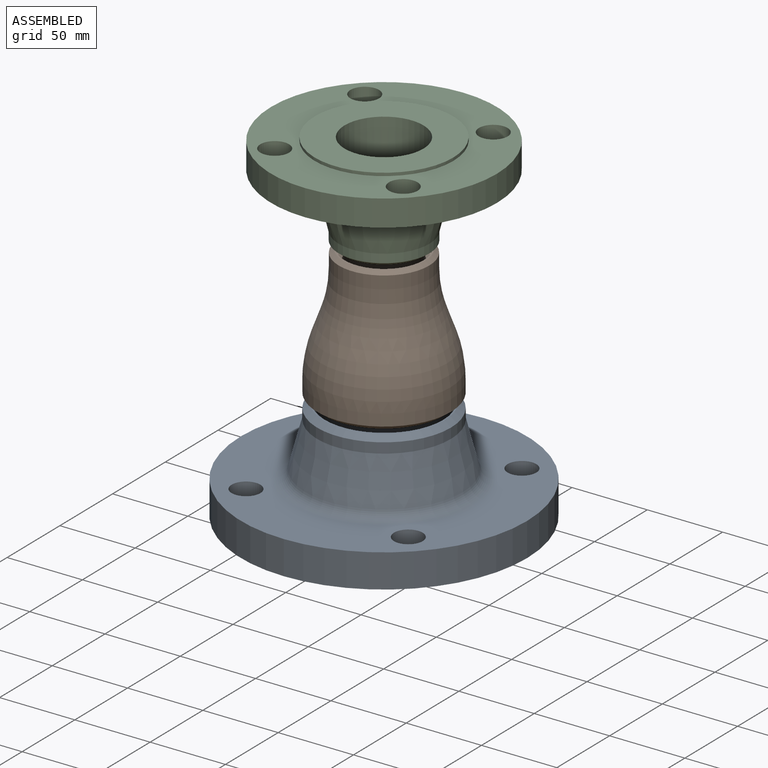
[diagram: assembled view]
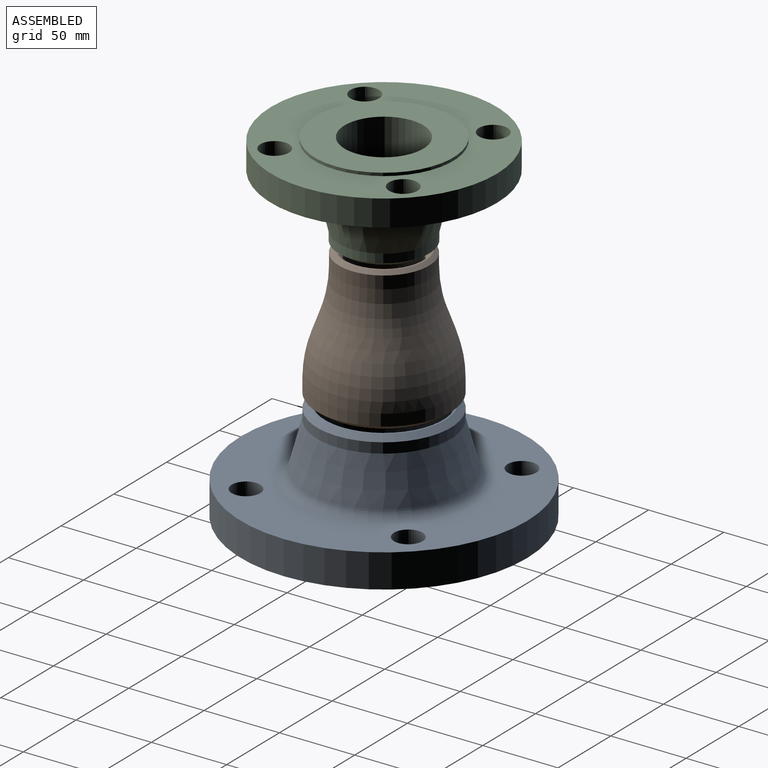
[diagram: assembled view, second angle]
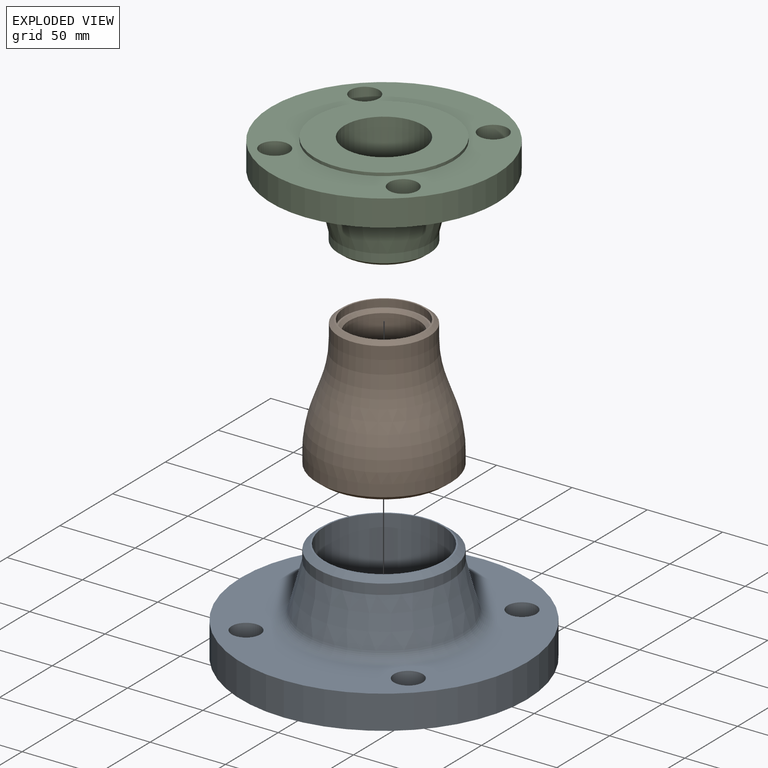
[diagram: exploded view]
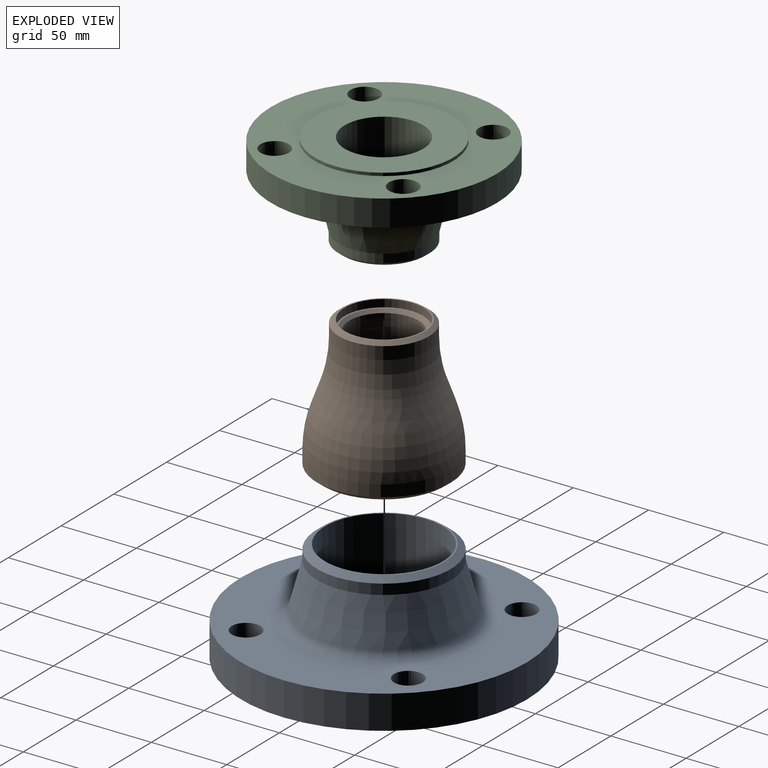
[diagram: exploded view, second angle]
ASSEMBLY  parts=3 mates=2
PART A: 16 faces, bbox 190x190x70 mm
  f0: plane 80.5x80.5mm, normal (0,0,1), area 249.8mm2, adj f1,f13
  f1: cylinder r=39.25mm len=78.5mm, axis (0,0,1), area 17263.1mm2, adj f0,f2
  f2: plane 127x127mm, normal (0,0,-1), area 7827.9mm2, adj f1,f3
  f3: cylinder r=63.5mm len=127mm, axis (0,0,1), area 798mm2, adj f2,f4
  f4: plane 190x190mm, normal (0,0,-1), area 14545.1mm2, adj f3,f5,f9,f10,f11,f12
  f5: cylinder r=95mm len=190mm, axis (0,0,1), area 13310.9mm2, adj f4,f6
  f6: plane 190x190mm, normal (0,0,1), area 15849.7mm2, adj f5,f9,f10,f11,f12,f15
  f7: cone r=54mm half-angle=15deg, axis (0,0,-1), area 9376.8mm2, adj f8,f15
  f8: cylinder r=44.45mm len=88.9mm, axis (0,0,1), area 1892.5mm2, adj f7,f14
  f9: cylinder r=9.53mm len=22.3mm, axis (0,0,1), area 1334.6mm2, adj f4,f6
  f10: cylinder r=9.53mm len=22.3mm, axis (0,0,1), area 1334.6mm2, adj f4,f6
  f11: cylinder r=9.53mm len=22.3mm, axis (0,0,1), area 1334.6mm2, adj f4,f6
  f12: cylinder r=9.53mm len=22.3mm, axis (0,0,1), area 1334.6mm2, adj f4,f6
  f13: cylinder r=40.25mm len=80.5mm, axis (0,0,-1), area 0.3mm2, adj f0,f14
  f14: cone r=40.25mm half-angle=52.5deg, axis (0,0,-1), area 1408.7mm2, adj f8,f13
  f15: torus R=60.14mm, axis (0,0,-1), area 3660.2mm2, adj f6,f7
PART B: 19 faces, bbox 136.3x115.2x115.2 mm
  f0: cylinder r=44.45mm len=88.9mm, axis (-1,0,0), area 2142.4mm2, adj f3,f14
  f1: cone r=44.45mm half-angle=20deg, axis (1,0,0), area 3283.1mm2, adj f14,f15
  f2: cylinder r=30mm len=60mm, axis (-1,0,0), area 1572.9mm2, adj f4,f15
  f3: cone r=40.25mm half-angle=52.5deg, axis (-1,0,0), area 1408.7mm2, adj f0,f5
  f4: cone r=27.2mm half-angle=52.5deg, axis (1,0,0), area 634.2mm2, adj f2,f13
  f5: plane 80.5x80.5mm, normal (1,0,0), area 249.8mm2, adj f3,f6
  f6: cylinder r=39.25mm len=78.5mm, axis (1,0,0), area 1233.1mm2, adj f5,f7
  f7: plane 78.5x78.5mm, normal (1,0,0), area 98.1mm2, adj f6,f10
  f8: cylinder r=23.1mm len=46.2mm, axis (-1,0,0), area 407.7mm2, adj f16,f18
  f9: cone r=38.85mm half-angle=20deg, axis (1,0,0), area 3471.6mm2, adj f16,f17
  f10: cylinder r=38.85mm len=77.7mm, axis (-1,0,0), area 733.8mm2, adj f7,f17
  f11: cylinder r=26.2mm len=52.4mm, axis (1,0,0), area 823.1mm2, adj f12,f13
  f12: plane 52.4x52.4mm, normal (-1,0,0), area 177.3mm2, adj f11,f18
  f13: plane 54.4x54.4mm, normal (-1,0,0), area 167.8mm2, adj f4,f11
  f14: revolved ~88.9x88.9mm, area 7515.9mm2, adj f0,f1
  f15: torus R=110mm, axis (-1,0,0), area 5547.1mm2, adj f1,f2
  f16: torus R=103.1mm, axis (1,0,0), area 4336.4mm2, adj f8,f9
  f17: revolved ~77.7x77.7mm, area 6533.3mm2, adj f9,f10
  f18: cone r=25.1mm half-angle=45deg, axis (-1,0,0), area 428.3mm2, adj f8,f12
PART C: 16 faces, bbox 150x150x64 mm
  f0: plane 54.4x54.4mm, normal (0,0,1), area 167.8mm2, adj f1,f13
  f1: cylinder r=26.2mm len=64mm, axis (0,0,1), area 10535.6mm2, adj f0,f2
  f2: plane 92.1x92.1mm, normal (0,0,-1), area 4505.6mm2, adj f1,f3
  f3: cylinder r=46.05mm len=92.1mm, axis (0,0,1), area 578.7mm2, adj f2,f4
  f4: plane 150x150mm, normal (0,0,-1), area 9869.3mm2, adj f3,f5,f9,f10,f11,f12
  f5: cylinder r=75mm len=150mm, axis (0,0,1), area 8246.7mm2, adj f4,f6
  f6: plane 150x150mm, normal (0,0,1), area 10526.7mm2, adj f5,f9,f10,f11,f12,f15
  f7: cone r=39mm half-angle=13.6deg, axis (0,0,-1), area 7019.2mm2, adj f8,f15
  f8: cylinder r=30.15mm len=60.3mm, axis (0,0,1), area 1086.5mm2, adj f7,f14
  f9: cylinder r=9.53mm len=19.05mm, axis (0,0,1), area 1047.3mm2, adj f4,f6
  f10: cylinder r=9.53mm len=19.05mm, axis (0,0,1), area 1047.3mm2, adj f4,f6
  f11: cylinder r=9.53mm len=19.05mm, axis (0,0,1), area 1047.3mm2, adj f4,f6
  f12: cylinder r=9.53mm len=19.05mm, axis (0,0,1), area 1047.3mm2, adj f4,f6
  f13: cylinder r=27.2mm len=54.4mm, axis (0,0,-1), area 0.2mm2, adj f0,f14
  f14: cone r=27.2mm half-angle=52.5deg, axis (0,0,-1), area 669.9mm2, adj f8,f13
  f15: torus R=43.72mm, axis (0,0,-1), area 2024mm2, adj f6,f7
PLACE A t=(0.43,-0.24,-35.74)mm fixed
PLACE B rot(axis=(0,1,0),90deg) t=(0.43,-0.24,126.56)mm
PLACE C rot(axis=(0,1,0),180deg) t=(0.43,-0.24,193.56)mm
MATE fastened B.f0 <-> A.f1  axis (0,0,1) through (0.43,-0.24,37.26)mm
MATE fastened C.f1 <-> B.f0  axis (0,0,1) through (0.43,-0.24,129.56)mm
